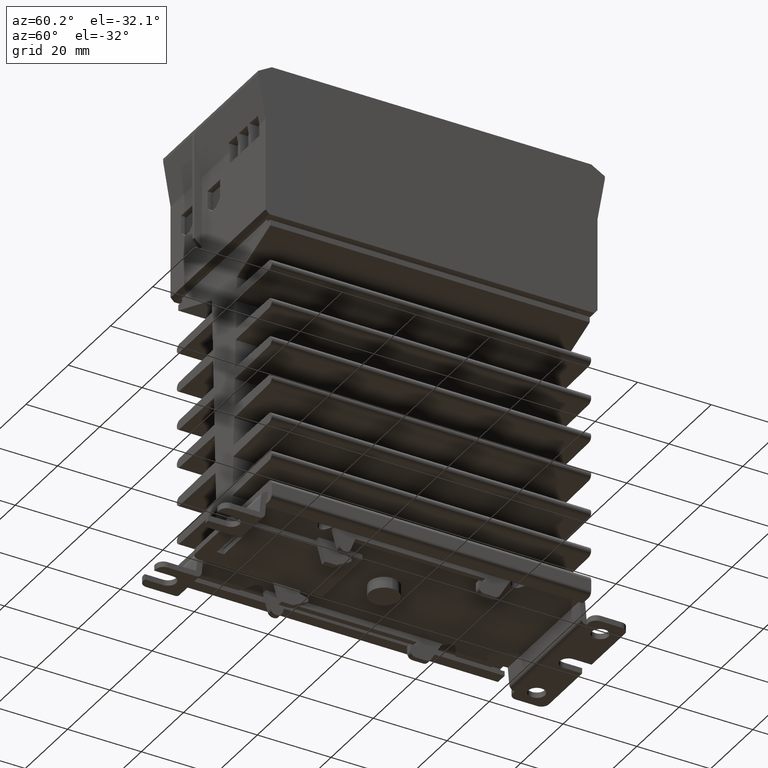
[diagram: clean part render]
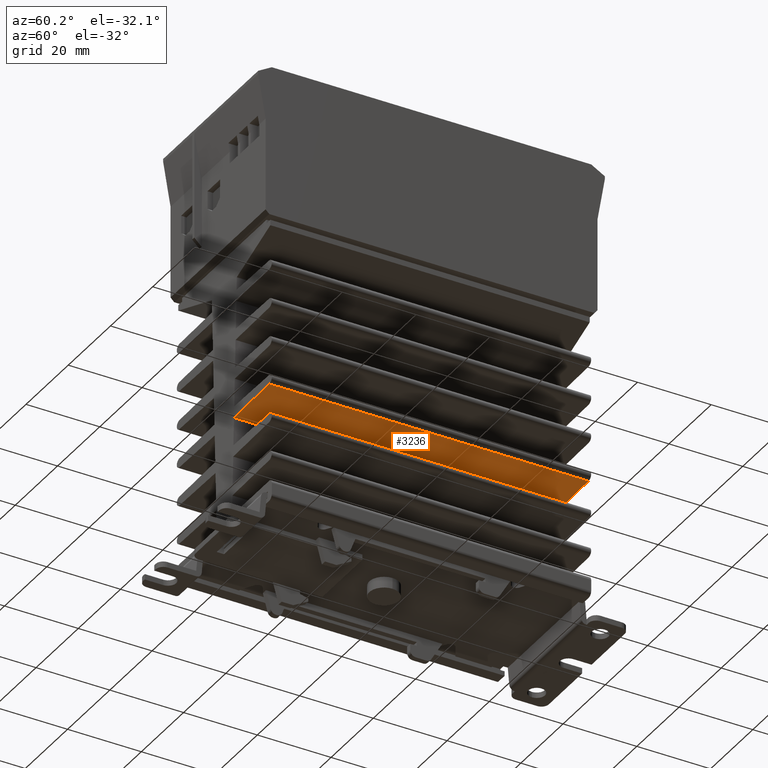
[diagram: same view with one face highlighted and labeled with its STEP entity id]
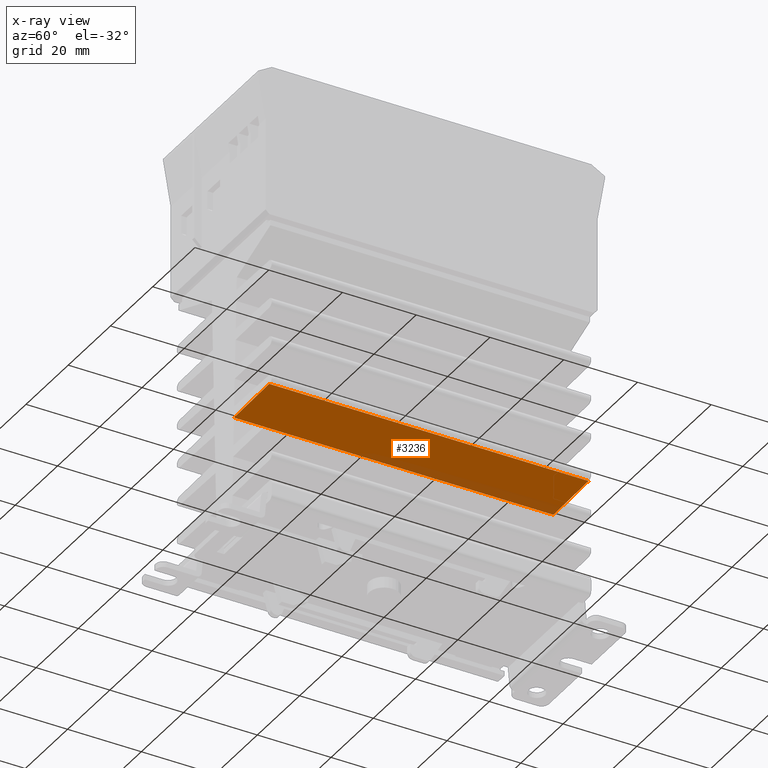
[diagram: x-ray of the same camera — body ghosted, the highlighted face saturated]
A machine part, auxiliary view. The second image highlights one B-rep face of the part: STEP entity #3236.
The next image is the same camera in x-ray: the body ghosted, the highlighted face saturated — about 12% of this face is hidden behind the body in this view.
In plain terms, the highlighted planar face has unit normal (0.0175, -0, -0.9998).
Its self-contained STEP definition (entity closure, byte-faithful):
#216 = EDGE_CURVE ( 'NONE', #5212, #12240, #6771, .T. ) ;
#415 = VECTOR ( 'NONE', #6623, 39.37007874015748143 ) ;
#1166 = CARTESIAN_POINT ( 'NONE',  ( 0.1796213670630445181, 1.704724409448818978, -1.834309994217129924 ) ) ;
#1352 = CARTESIAN_POINT ( 'NONE',  ( 0.1796213670630445181, -1.704724409448818978, -1.834309994217129924 ) ) ;
#1997 = EDGE_LOOP ( 'NONE', ( #4599, #11733, #2633, #9349 ) ) ;
#2347 = VECTOR ( 'NONE', #3133, 39.37007874015748143 ) ;
#2633 = ORIENTED_EDGE ( 'NONE', *, *, #11830, .T. ) ;
#3133 = DIRECTION ( 'NONE',  ( 0.9998476951563912696, 0.000000000000000000, 0.01745240643728245347 ) ) ;
#3236 = ADVANCED_FACE ( 'NONE', ( #3540 ), #11318, .T. ) ;
#3442 = LINE ( 'NONE', #12311, #415 ) ;
#3446 = EDGE_CURVE ( 'NONE', #9375, #12240, #9853, .T. ) ;
#3540 = FACE_OUTER_BOUND ( 'NONE', #1997, .T. ) ;
#4189 = EDGE_CURVE ( 'NONE', #5185, #9375, #4609, .T. ) ;
#4318 = DIRECTION ( 'NONE',  ( 0.9998476951563912696, 0.000000000000000000, 0.01745240643728205449 ) ) ;
#4599 = ORIENTED_EDGE ( 'NONE', *, *, #3446, .F. ) ;
#4609 = LINE ( 'NONE', #5333, #9755 ) ;
#5135 = DIRECTION ( 'NONE',  ( 0.000000000000000000, 1.000000000000000000, 0.000000000000000000 ) ) ;
#5185 = VERTEX_POINT ( 'NONE', #1352 ) ;
#5205 = DIRECTION ( 'NONE',  ( -0.9998476951563912696, 0.000000000000000000, -0.01745240643728200591 ) ) ;
#5212 = VERTEX_POINT ( 'NONE', #1166 ) ;
#5333 = CARTESIAN_POINT ( 'NONE',  ( 0.1796213670630445181, -1.704724409448818978, -1.834309994217129924 ) ) ;
#5572 = CARTESIAN_POINT ( 'NONE',  ( 0.8374730514978977469, 1.704724409448818978, -1.822827150352184900 ) ) ;
#6465 = DIRECTION ( 'NONE',  ( 0.01745240643728200591, -6.471314000000001296E-20, -0.9998476951563912696 ) ) ;
#6623 = DIRECTION ( 'NONE',  ( 1.129400021112731866E-21, 1.000000000000000000, -6.470328387533290063E-20 ) ) ;
#6771 = LINE ( 'NONE', #7800, #2347 ) ;
#7431 = CARTESIAN_POINT ( 'NONE',  ( 0.8374730514978956375, -1.704724409448818978, -1.822827150352184900 ) ) ;
#7800 = CARTESIAN_POINT ( 'NONE',  ( 0.1796213670630445181, 1.704724409448818978, -1.834309994217129924 ) ) ;
#8918 = AXIS2_PLACEMENT_3D ( 'NONE', #7431, #6465, #5205 ) ;
#9349 = ORIENTED_EDGE ( 'NONE', *, *, #216, .T. ) ;
#9375 = VERTEX_POINT ( 'NONE', #9863 ) ;
#9755 = VECTOR ( 'NONE', #4318, 39.37007874015748143 ) ;
#9853 = LINE ( 'NONE', #9981, #10745 ) ;
#9863 = CARTESIAN_POINT ( 'NONE',  ( 0.8374730514978977469, -1.704724409448818978, -1.822827150352184900 ) ) ;
#9981 = CARTESIAN_POINT ( 'NONE',  ( 0.8374730514978977469, -1.704724409448818978, -1.822827150352184900 ) ) ;
#10745 = VECTOR ( 'NONE', #5135, 39.37007874015748143 ) ;
#11318 = PLANE ( 'NONE',  #8918 ) ;
#11733 = ORIENTED_EDGE ( 'NONE', *, *, #4189, .F. ) ;
#11830 = EDGE_CURVE ( 'NONE', #5185, #5212, #3442, .T. ) ;
#12240 = VERTEX_POINT ( 'NONE', #5572 ) ;
#12311 = CARTESIAN_POINT ( 'NONE',  ( 0.1796213670630445181, -1.704724409448818978, -1.834309994217129924 ) ) ;